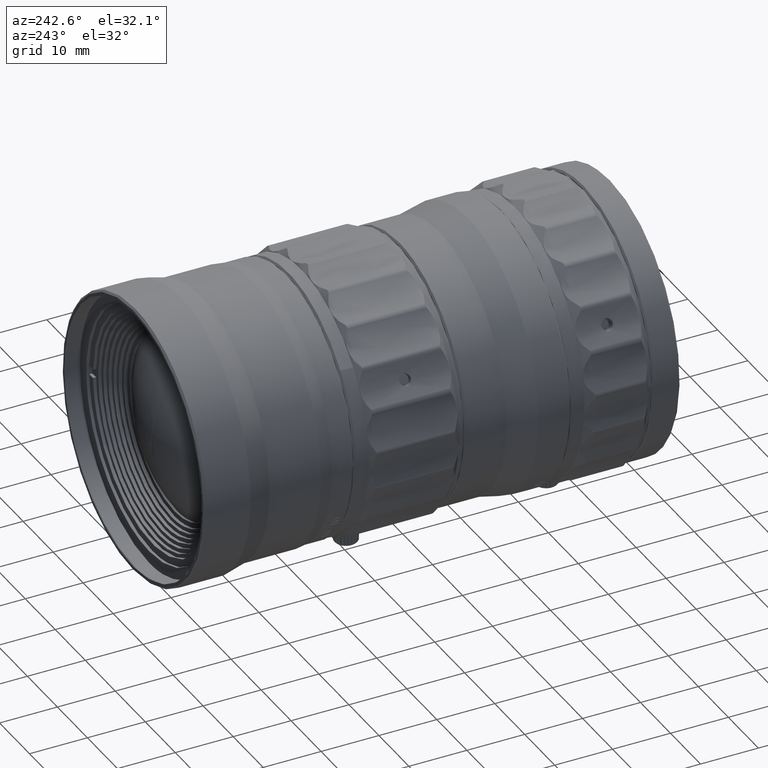
[diagram: clean part render]
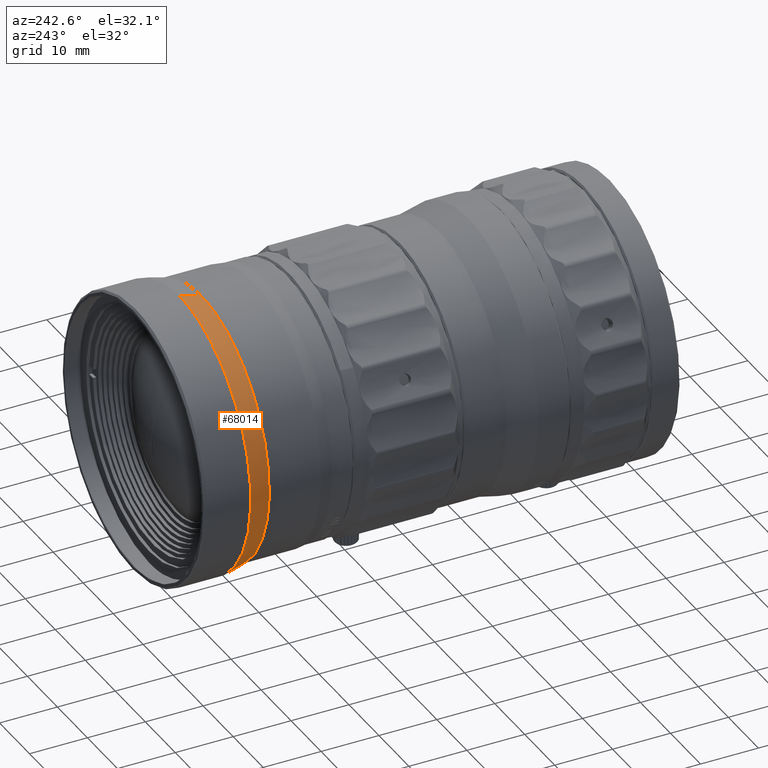
[diagram: same view with one face highlighted and labeled with its STEP entity id]
A machine part, auxiliary view. The second image highlights one B-rep face of the part: STEP entity #68014.
In plain terms, the highlighted face is a freeform B-spline surface patch.
Its self-contained STEP definition (entity closure, byte-faithful):
#465 = EDGE_LOOP ( 'NONE', ( #28828, #63521, #51389, #2182 ) ) ;
#1624 = CARTESIAN_POINT ( 'NONE',  ( -9.742412854478230668E-09, 78.54999999999999716, -23.75000000000000000 ) ) ;
#1755 = EDGE_CURVE ( 'NONE', #43404, #40083, #64856, .T. ) ;
#2182 = ORIENTED_EDGE ( 'NONE', *, *, #1755, .F. ) ;
#5254 = VERTEX_POINT ( 'NONE', #72871 ) ;
#6140 = CARTESIAN_POINT ( 'NONE',  ( -5.937500491270950326E-09, 78.54999999999999716, -23.75000000000000000 ) ) ;
#6889 = CARTESIAN_POINT ( 'NONE',  ( -45.59999997720002085, 74.84999999999999432, 22.79999999181086423 ) ) ;
#7375 = CARTESIAN_POINT ( 'NONE',  ( -9.352716340299099588E-09, 74.84999999999999432, -22.80000000000000071 ) ) ;
#15201 = CARTESIAN_POINT ( 'NONE',  ( -47.49999997625001669, 78.54999999999999716, -23.74999999146964669 ) ) ;
#16062 = B_SPLINE_CURVE_WITH_KNOTS ( 'NONE', 1,
 ( #75987, #38409 ),
 .UNSPECIFIED., .F., .F.,
 ( 2, 2 ),
 ( -1.000000000000000000, 0.000000000000000000 ),
 .UNSPECIFIED. ) ;
#19953 = CARTESIAN_POINT ( 'NONE',  ( -5.700000471620119658E-09, 74.84999999999999432, -22.80000000000000071 ) ) ;
#20051 = CARTESIAN_POINT ( 'NONE',  ( -5.584389405476144727E-15, 74.84999999999999432, 22.80000000000000071 ) ) ;
#21690 = VERTEX_POINT ( 'NONE', #45805 ) ;
#27072 = CARTESIAN_POINT ( 'NONE',  ( -5.937500491270950326E-09, 78.54999999999999716, -23.75000000000000000 ) ) ;
#28828 = ORIENTED_EDGE ( 'NONE', *, *, #59511, .T. ) ;
#32284 = CARTESIAN_POINT ( 'NONE',  ( -45.59999999064726950, 74.84999999999999432, -22.79999998129456884 ) ) ;
#32648 = CARTESIAN_POINT ( 'NONE',  ( -5.937500491270950326E-09, 78.54999999999999716, -23.75000000000000000 ) ) ;
#37117 = CARTESIAN_POINT ( 'NONE',  ( -5.700000471620119658E-09, 74.84999999999999432, 22.80000000000000071 ) ) ;
#38409 = CARTESIAN_POINT ( 'NONE',  ( -5.700000471620119658E-09, 74.84999999999999432, 22.80000000000000071 ) ) ;
#39154 = CARTESIAN_POINT ( 'NONE',  ( -5.700000471620119658E-09, 74.84999999999999432, -22.80000000000000071 ) ) ;
#39214 = CARTESIAN_POINT ( 'NONE',  ( -47.49999999025757091, 78.54999999999999716, -23.74999998051517025 ) ) ;
#40083 = VERTEX_POINT ( 'NONE', #32648 ) ;
#43404 = VERTEX_POINT ( 'NONE', #39154 ) ;
#44958 = CARTESIAN_POINT ( 'NONE',  ( -5.817072297101719568E-15, 78.54999999999999716, 23.75000000000000000 ) ) ;
#45805 = CARTESIAN_POINT ( 'NONE',  ( -5.937500491270950326E-09, 78.54999999999999716, 23.75000000000000000 ) ) ;
#45857 = CARTESIAN_POINT ( 'NONE',  ( -47.49999998172724247, 78.54999999999999716, 23.74999998051519512 ) ) ;
#49874 =( BOUNDED_CURVE ( )  B_SPLINE_CURVE ( 3, ( #27072, #15201, #45857, #76885 ),
 .UNSPECIFIED., .F., .T. ) 
 B_SPLINE_CURVE_WITH_KNOTS ( ( 4, 4 ),
 ( -3.141592653589795336, 0.000000000000000000 ),
 .UNSPECIFIED. ) 
 CURVE ( )  GEOMETRIC_REPRESENTATION_ITEM ( )  RATIONAL_B_SPLINE_CURVE ( ( 1.000000000000000000, 0.3333333335299309419, 0.3333333335299309419, 1.000000000000000000 ) ) 
 REPRESENTATION_ITEM ( '' )  );
#49878 =( BOUNDED_SURFACE ( )  B_SPLINE_SURFACE ( 1, 3, ( 
 ( #7375, #32284, #70264, #20051 ),
 ( #1624, #39214, #64163, #44958 ) ),
 .UNSPECIFIED., .F., .F., .T. ) 
 B_SPLINE_SURFACE_WITH_KNOTS ( ( 2, 2 ),
 ( 4, 4 ),
 ( 0.000000000000000000, 0.9999999999999780176 ),
 ( 0.000000000000000000, 1.000000000000000000 ),
 .UNSPECIFIED. ) 
 GEOMETRIC_REPRESENTATION_ITEM ( )  RATIONAL_B_SPLINE_SURFACE ( (
 ( 1.000000000000000000, 0.3333333334700690487, 0.3333333334700690487, 1.000000000000000000),
 ( 1.000000000000000000, 0.3333333334700690487, 0.3333333334700690487, 1.000000000000000000) ) ) 
 REPRESENTATION_ITEM ( '' )  SURFACE ( )  );
#50998 = CARTESIAN_POINT ( 'NONE',  ( -45.59999998245815078, 74.84999999999993747, -22.79999998129459016 ) ) ;
#51389 = ORIENTED_EDGE ( 'NONE', *, *, #70957, .F. ) ;
#51885 = FACE_OUTER_BOUND ( 'NONE', #465, .T. ) ;
#57192 = CARTESIAN_POINT ( 'NONE',  ( -5.700000471620119658E-09, 74.84999999999999432, -22.80000000000000071 ) ) ;
#59511 = EDGE_CURVE ( 'NONE', #43404, #5254, #62786, .T. ) ;
#62786 =( BOUNDED_CURVE ( )  B_SPLINE_CURVE ( 3, ( #19953, #50998, #6889, #37117 ),
 .UNSPECIFIED., .F., .T. ) 
 B_SPLINE_CURVE_WITH_KNOTS ( ( 4, 4 ),
 ( -3.141592653589795336, 0.000000000000000000 ),
 .UNSPECIFIED. ) 
 CURVE ( )  GEOMETRIC_REPRESENTATION_ITEM ( )  RATIONAL_B_SPLINE_CURVE ( ( 1.000000000000000000, 0.3333333335299309419, 0.3333333335299309419, 1.000000000000000000 ) ) 
 REPRESENTATION_ITEM ( '' )  );
#63521 = ORIENTED_EDGE ( 'NONE', *, *, #68011, .F. ) ;
#64163 = CARTESIAN_POINT ( 'NONE',  ( -47.49999998051516314, 78.54999999999999716, 23.74999999999999289 ) ) ;
#64856 = B_SPLINE_CURVE_WITH_KNOTS ( 'NONE', 1,
 ( #57192, #6140 ),
 .UNSPECIFIED., .F., .F.,
 ( 2, 2 ),
 ( -1.000000000000000000, 0.000000000000000000 ),
 .UNSPECIFIED. ) ;
#68011 = EDGE_CURVE ( 'NONE', #21690, #5254, #16062, .T. ) ;
#68014 = ADVANCED_FACE ( 'NONE', ( #51885 ), #49878, .F. ) ;
#70264 = CARTESIAN_POINT ( 'NONE',  ( -45.59999998129455889, 74.84999999999999432, 22.79999999999999361 ) ) ;
#70957 = EDGE_CURVE ( 'NONE', #40083, #21690, #49874, .T. ) ;
#72871 = CARTESIAN_POINT ( 'NONE',  ( -5.700000471620119658E-09, 74.84999999999999432, 22.80000000000000071 ) ) ;
#75987 = CARTESIAN_POINT ( 'NONE',  ( -5.937500491270950326E-09, 78.54999999999999716, 23.75000000000000000 ) ) ;
#76885 = CARTESIAN_POINT ( 'NONE',  ( -5.937500491270950326E-09, 78.54999999999999716, 23.75000000000000000 ) ) ;